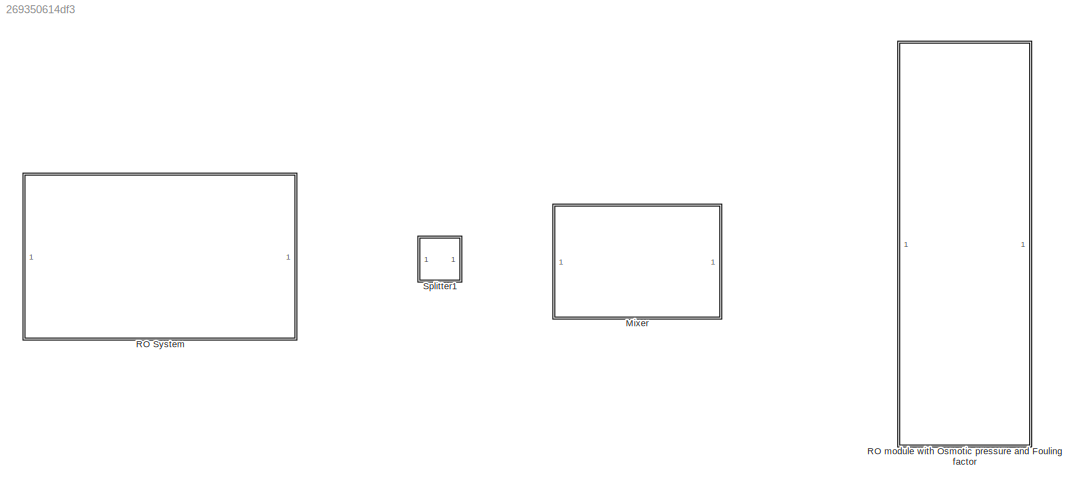
MODEL slx_269350614df3
KIND model
CONFIG AbsTol = auto
CONFIG EnableMultiTasking = off
CONFIG FixedStep = auto
CONFIG MaxStep = auto
CONFIG MinStep = auto
CONFIG RelTol = 1e-3
CONFIG SampleTimeConstraint = Unconstrained
CONFIG SolverName = VariableStepAuto
CONFIG StartTime = 0.0
CONFIG StopTime = 10.0
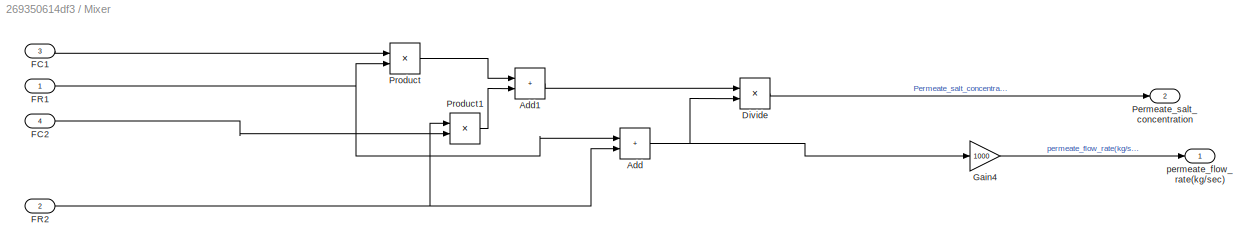
BLOCK [SubSystem] Mixer
BLOCK [Sum] Mixer/Add
  IconShape = rectangular
BLOCK [Sum] Mixer/Add1
  IconShape = rectangular
BLOCK [Product] Mixer/Divide
  Inputs = */
BLOCK [Inport] Mixer/FC1
  Port = 3
BLOCK [Inport] Mixer/FC2
  Port = 4
BLOCK [Inport] Mixer/FR1
BLOCK [Inport] Mixer/FR2
  NameLocation = top
  Port = 2
BLOCK [Gain] Mixer/Gain4
  Gain = 1000
BLOCK [Outport] Mixer/Permeate_salt_concentration
  Port = 2
BLOCK [Product] Mixer/Product
BLOCK [Product] Mixer/Product1
BLOCK [Outport] Mixer/permeate_flow_rate(kg//sec)
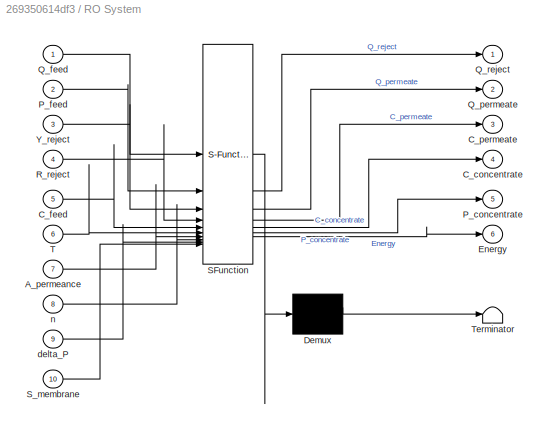
BLOCK [SubSystem] RO System
  ErrorFcn = Stateflow.Translate.translate
  LibrarySourceBlock = simulink/User-Defined\nFunctions/MATLAB Function
  PermitHierarchicalResolution = ExplicitOnly
  SFBlockType = MATLAB Function
  TreatAsAtomicUnit = on
BLOCK [Demux] RO System/ Demux 
  Outputs = 1
BLOCK [S-Function] RO System/ SFunction 
  EnableBusSupport = off
  FunctionName = sf_sfun
  PortCounts = [10 7]
  SFcnIsStateOwnerBlock = off
  SFunctionDeploymentMode = off
  Tag = Stateflow S-Function 5
BLOCK [Terminator] RO System/ Terminator 
BLOCK [Inport] RO System/A_permeance
  Port = 7
BLOCK [Outport] RO System/C_concentrate
  Port = 4
BLOCK [Inport] RO System/C_feed
  Port = 5
BLOCK [Outport] RO System/C_permeate
  Port = 3
BLOCK [Outport] RO System/Energy
  Port = 6
BLOCK [Outport] RO System/P_concentrate
  Port = 5
BLOCK [Inport] RO System/P_feed
  Port = 2
BLOCK [Inport] RO System/Q_feed
BLOCK [Outport] RO System/Q_permeate
  Port = 2
BLOCK [Outport] RO System/Q_reject
BLOCK [Inport] RO System/R_reject
  Port = 4
BLOCK [Inport] RO System/S_membrane
  Port = 10
BLOCK [Inport] RO System/T
  Port = 6
BLOCK [Inport] RO System/Y_reject
  Port = 3
BLOCK [Inport] RO System/delta_P
  Port = 9
BLOCK [Inport] RO System/n
  Port = 8
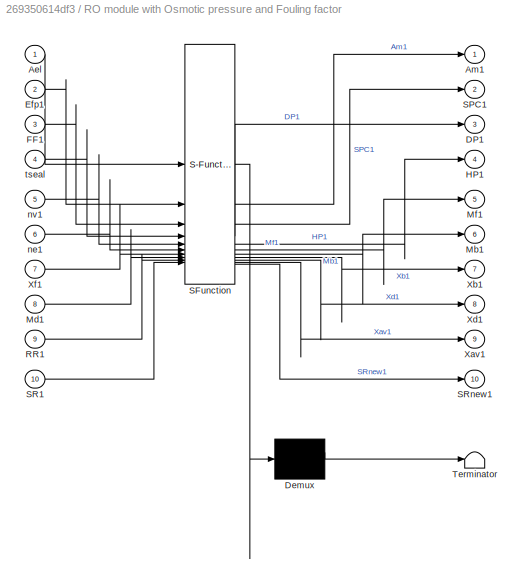
BLOCK [SubSystem] RO module with Osmotic pressure and Fouling factor
  ErrorFcn = Stateflow.Translate.translate
  LibrarySourceBlock = simulink/User-Defined\nFunctions/MATLAB Function
  PermitHierarchicalResolution = ExplicitOnly
  SFBlockType = MATLAB Function
  TreatAsAtomicUnit = on
BLOCK [Demux] RO module with Osmotic pressure and Fouling factor/ Demux 
  Outputs = 1
BLOCK [S-Function] RO module with Osmotic pressure and Fouling factor/ SFunction 
  EnableBusSupport = off
  FunctionName = sf_sfun
  PortCounts = [10 11]
  SFcnIsStateOwnerBlock = off
  SFunctionDeploymentMode = off
  Tag = Stateflow S-Function 8
BLOCK [Terminator] RO module with Osmotic pressure and Fouling factor/ Terminator 
BLOCK [Inport] RO module with Osmotic pressure and Fouling factor/Ael
BLOCK [Outport] RO module with Osmotic pressure and Fouling factor/Am1
BLOCK [Outport] RO module with Osmotic pressure and Fouling factor/DP1
  Port = 3
BLOCK [Inport] RO module with Osmotic pressure and Fouling factor/Efp1
  Port = 2
BLOCK [Inport] RO module with Osmotic pressure and Fouling factor/FF1
  Port = 3
BLOCK [Outport] RO module with Osmotic pressure and Fouling factor/HP1
  Port = 4
BLOCK [Outport] RO module with Osmotic pressure and Fouling factor/Mb1
  Port = 6
BLOCK [Inport] RO module with Osmotic pressure and Fouling factor/Md1
  Port = 8
BLOCK [Outport] RO module with Osmotic pressure and Fouling factor/Mf1
  Port = 5
BLOCK [Inport] RO module with Osmotic pressure and Fouling factor/RR1
  Port = 9
BLOCK [Outport] RO module with Osmotic pressure and Fouling factor/SPC1
  Port = 2
BLOCK [Inport] RO module with Osmotic pressure and Fouling factor/SR1
  Port = 10
BLOCK [Outport] RO module with Osmotic pressure and Fouling factor/SRnew1
  Port = 10
BLOCK [Outport] RO module with Osmotic pressure and Fouling factor/Xav1
  Port = 9
BLOCK [Outport] RO module with Osmotic pressure and Fouling factor/Xb1
  Port = 7
BLOCK [Outport] RO module with Osmotic pressure and Fouling factor/Xd1
  Port = 8
BLOCK [Inport] RO module with Osmotic pressure and Fouling factor/Xf1
  Port = 7
BLOCK [Inport] RO module with Osmotic pressure and Fouling factor/ne1
  Port = 6
BLOCK [Inport] RO module with Osmotic pressure and Fouling factor/nv1
  Port = 5
BLOCK [Inport] RO module with Osmotic pressure and Fouling factor/tseal
  Port = 4
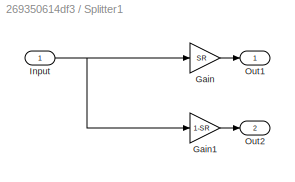
BLOCK [SubSystem] Splitter1
BLOCK [Gain] Splitter1/Gain
  Gain = SR
BLOCK [Gain] Splitter1/Gain1
  Gain = 1-SR
BLOCK [Inport] Splitter1/Input
BLOCK [Outport] Splitter1/Out1
BLOCK [Outport] Splitter1/Out2
  Port = 2
LINE Mixer/Add1:1 -> Mixer/Divide:1
NET Mixer/Add:1 -> Mixer/Divide:2, Mixer/Gain4:1
LINE Mixer/Divide:1 -> Mixer/Permeate_salt_concentration:1
LINE Mixer/FC1:1 -> Mixer/Product:1
LINE Mixer/FC2:1 -> Mixer/Product1:2
NET Mixer/FR1:1 -> Mixer/Add:1, Mixer/Product:2
NET Mixer/FR2:1 -> Mixer/Add:2, Mixer/Product1:1
LINE Mixer/Gain4:1 -> Mixer/permeate_flow_rate(kg//sec):1
LINE Mixer/Product1:1 -> Mixer/Add1:2
LINE Mixer/Product:1 -> Mixer/Add1:1
LINE Splitter1/Gain1:1 -> Splitter1/Out2:1
LINE Splitter1/Gain:1 -> Splitter1/Out1:1
NET Splitter1/Input:1 -> Splitter1/Gain1:1, Splitter1/Gain:1
note: NET lines group one-source signal fan-out (src -> all destinations, sorted); 1:1 wires keep LINE
CHART RO System states=1 transitions=1
  STATE_LABEL 'eML_blk_kernel()'
  STATE_LABEL 'SCRIPT:\nfunction [Q_reject, Q_permeate, C_permeate, C_concentrate, P_concentrate, Energy] = RO_module(Q_feed, P_feed, Y_reject, R_reject, C_feed, T, A_permeance, n, delta_P, S_membrane)\n\n% This function calculates various parameters in a reverse osmosis (RO) desalination process.\n\n% Input Parameters:\n% Q_feed: Feed water flow rate (m^3/s)\n% P_feed: Feed water pressure (Pa)\n% Y_reject: Fraction of ...<+2449ch>'
CHART RO module with Osmotic pressure and Fouling factor states=1 transitions=1
  STATE_LABEL 'eML_blk_kernel()'
  STATE_LABEL 'SCRIPT:\nfunction [Am1,SPC1,DP1,HP1,Mf1,Mb1,Xb1,Xd1,Xav1,SRnew1] = RO(Ael,Efp1,FF1,tseal,nv1,ne1,Xf1,Md1,RR1,SR1)\n\n   %%%%%%% INPUTS %%%%%%%%%%%         |        %%%%%%%%% OUTPUTS%%%%%%%%%%%     |   \n% Ael-    Element area m2             |      Am1 -  Total Membrabne Area        |        \n% Efp1-   Pump efficiency             |      SPC1 - Specific Power consumption  | \n% FF1-    Fouling Factor    ...<+3580ch>'
CHART  states=0 transitions=0
CHART  states=0 transitions=0
